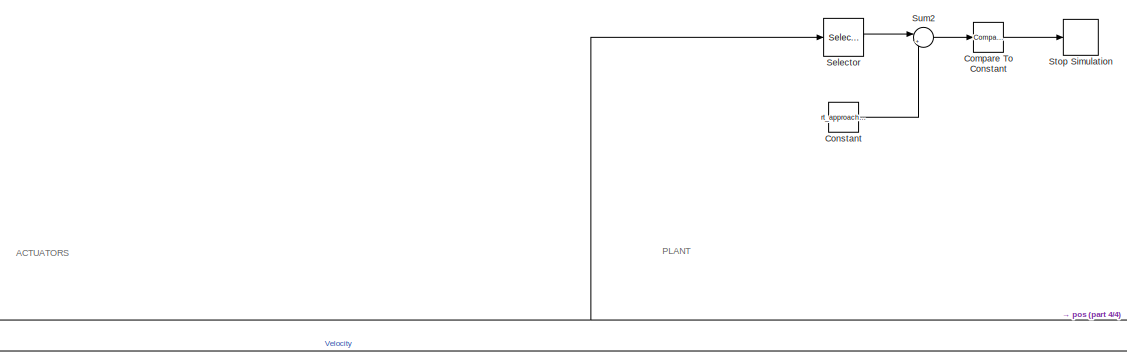
[diagram: root canvas - part 1/4, top center region]
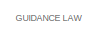
[diagram: root canvas - part 2/4, middle left region]
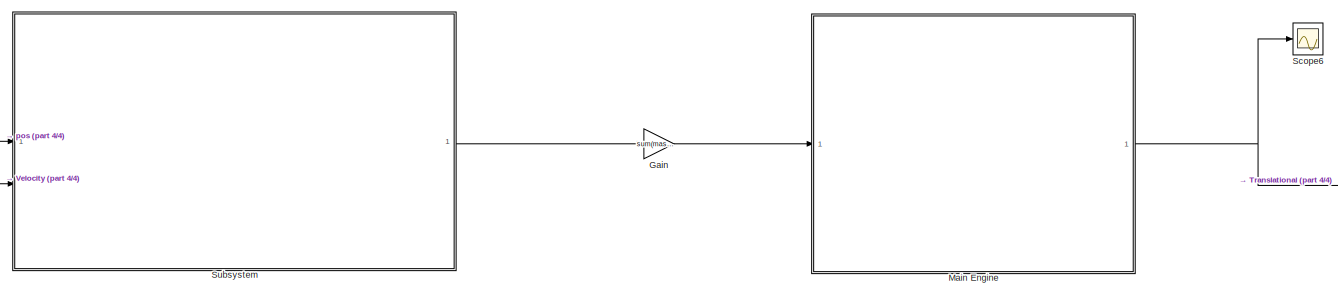
[diagram: root canvas - part 3/4, bottom left region]
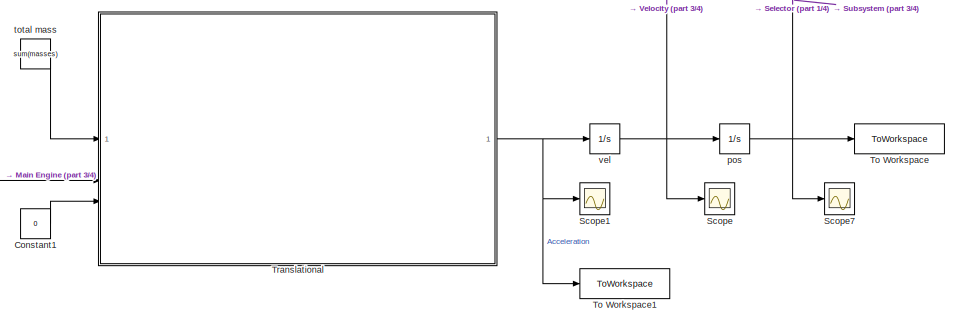
[diagram: root canvas - part 4/4, bottom right region]
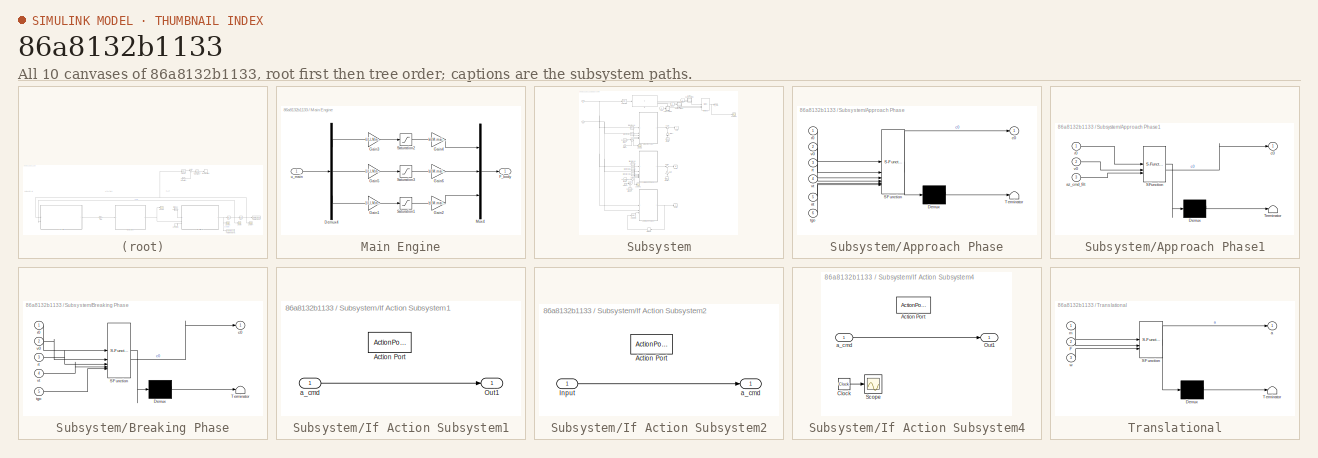
[diagram: thumbnail index - all 10 canvases of the model, root first then tree order]
MODEL slx_86a8132b1133
KIND model
CONFIG AbsTol = auto
CONFIG EnableMultiTasking = off
CONFIG FixedStep = 0.01
CONFIG MaxStep = auto
CONFIG MinStep = auto
CONFIG RelTol = 1e-3
CONFIG SampleTimeConstraint = Unconstrained
CONFIG SolverName = ode4
CONFIG StartTime = 0.0
CONFIG StopTime = 5000
BLOCK [Reference] Compare To Constant  REF=simulink/Logic and Bit
Operations/Compare
To Constant
  SourceBlock = simulink/Logic and Bit\nOperations/Compare\nTo Constant
  SourceType = Compare To Constant
BLOCK [Constant] Constant
  Value = rt_approach(3)
BLOCK [Constant] Constant1
  Value = 0
BLOCK [Gain] Gain
  Gain = sum(masses)
BLOCK [SubSystem] Main Engine
  TreatAsAtomicUnit = on
BLOCK [Demux] Main Engine/Demux4
  Outputs = 3
BLOCK [Outport] Main Engine/F_body
BLOCK [Gain] Main Engine/Gain1
  Gain = 1/LLM.main_engine.Fmax
BLOCK [Gain] Main Engine/Gain2
  Gain = LLM.main_engine.Fmax
BLOCK [Gain] Main Engine/Gain3
  Gain = 1/LLM.main_engine.Fmax
BLOCK [Gain] Main Engine/Gain4
  Gain = LLM.main_engine.Fmax
BLOCK [Gain] Main Engine/Gain5
  Gain = 1/LLM.main_engine.Fmax
BLOCK [Gain] Main Engine/Gain6
  Gain = LLM.main_engine.Fmax
BLOCK [Mux] Main Engine/Mux4
  DisplayOption = bar
  Inputs = 3
BLOCK [Saturate] Main Engine/Saturation1
  LowerLimit = -1
  UpperLimit = 1
BLOCK [Saturate] Main Engine/Saturation2
  LowerLimit = -1
  UpperLimit = 1
BLOCK [Saturate] Main Engine/Saturation3
  LowerLimit = -1
  UpperLimit = 1
BLOCK [Inport] Main Engine/u_main
BLOCK [Scope] Scope
  Floating = off
  NumInputPorts = 1
  ScopeSpecificationString = Simulink.scopes.TimeScopeBlockCfg('CurrentConfiguration', extmgr.ConfigurationSet(extmgr.Configuration('Core','General UI',true),extmgr.Configuration('Core','Source UI',true),extmgr.Configuration('Sources','WiredSimulink',true,'DataLoggingVariableName','ScopeData2'),extmgr.Configuration('Visuals','Time Domain',true,'SerializedDisplays',{struct('MinYLimReal','-239.01619','MaxYLimReal','39.52663','Y...<+1571ch>
BLOCK [Scope] Scope1
  Floating = off
  NumInputPorts = 1
  ScopeSpecificationString = Simulink.scopes.TimeScopeBlockCfg('CurrentConfiguration', extmgr.ConfigurationSet(extmgr.Configuration('Core','General UI',true),extmgr.Configuration('Core','Source UI',true),extmgr.Configuration('Sources','WiredSimulink',true,'DataLoggingVariableName','ScopeData1'),extmgr.Configuration('Visuals','Time Domain',true,'SerializedDisplays',{struct('MinYLimReal','-1.83877','MaxYLimReal','9.70098','YLab...<+1568ch>
BLOCK [Scope] Scope6
  Floating = off
  NumInputPorts = 1
  ScopeSpecificationString = Simulink.scopes.TimeScopeBlockCfg('CurrentConfiguration', extmgr.ConfigurationSet(extmgr.Configuration('Core','General UI',true),extmgr.Configuration('Core','Source UI',true),extmgr.Configuration('Sources','WiredSimulink',true,'DataLoggingVariableName','ScopeData2'),extmgr.Configuration('Visuals','Time Domain',true,'SerializedDisplays',{struct('MinYLimReal','-10872.45811','MaxYLimReal','96195.3189...<+2039ch>
BLOCK [Scope] Scope7
  Floating = off
  NumInputPorts = 1
  ScopeSpecificationString = Simulink.scopes.TimeScopeBlockCfg('CurrentConfiguration', extmgr.ConfigurationSet(extmgr.Configuration('Core','General UI',true),extmgr.Configuration('Core','Source UI',true),extmgr.Configuration('Sources','WiredSimulink',true),extmgr.Configuration('Visuals','Time Domain',true,'SerializedDisplays',{struct('MinYLimReal','-12947.57434','MaxYLimReal','28556.84206','YLabelReal','','MinYLimMag','   0.0...<+1541ch>
BLOCK [Selector] Selector
  IndexOptions = Index vector (dialog)
  Indices = [3]
  InputPortWidth = 3
  OutputSizes = 1
BLOCK [Stop] Stop Simulation
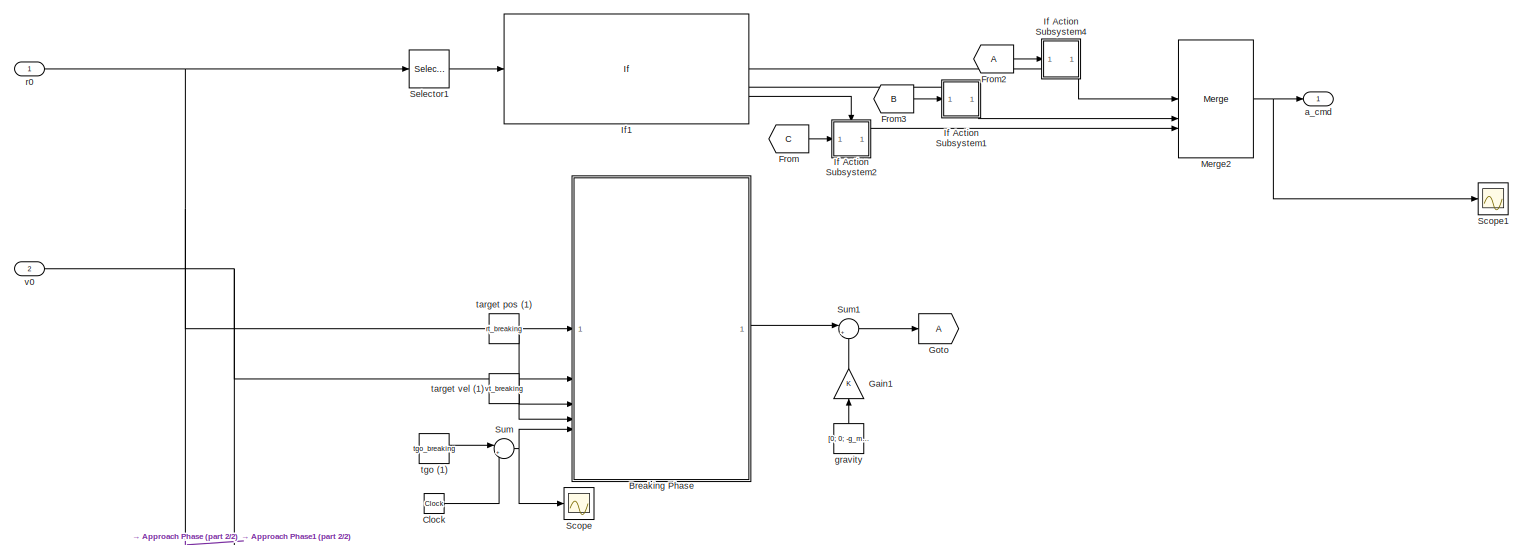
[diagram: Subsystem - part 1/2, full width, top band]
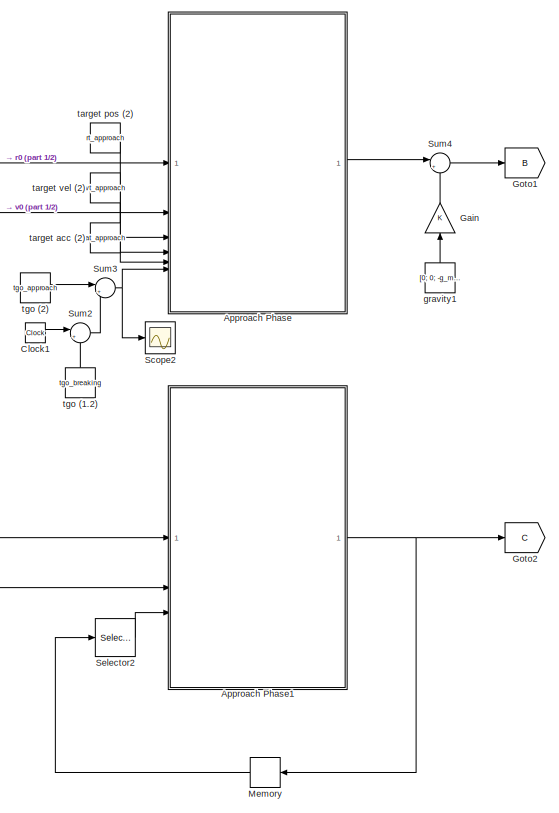
[diagram: Subsystem - part 2/2, bottom center region]
BLOCK [SubSystem] Subsystem
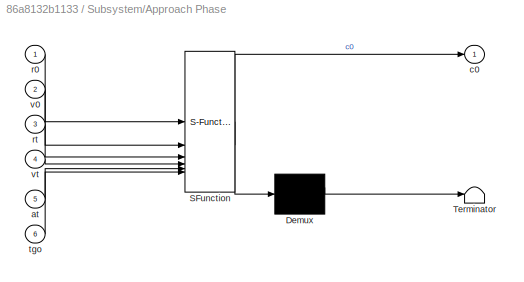
BLOCK [SubSystem] Subsystem/Approach Phase
  ErrorFcn = Stateflow.Translate.translate
  PermitHierarchicalResolution = ExplicitOnly
  SFBlockType = MATLAB Function
  TreatAsAtomicUnit = on
BLOCK [Demux] Subsystem/Approach Phase/ Demux 
  Outputs = 1
BLOCK [S-Function] Subsystem/Approach Phase/ SFunction 
  EnableBusSupport = on
  FunctionName = sf_sfun
  PortCounts = [6 2]
  SFcnIsStateOwnerBlock = off
  SFunctionDeploymentMode = off
  Tag = Stateflow S-Function 1
BLOCK [Terminator] Subsystem/Approach Phase/ Terminator 
BLOCK [Inport] Subsystem/Approach Phase/at
  Port = 5
BLOCK [Outport] Subsystem/Approach Phase/c0
BLOCK [Inport] Subsystem/Approach Phase/r0
BLOCK [Inport] Subsystem/Approach Phase/rt
  Port = 3
BLOCK [Inport] Subsystem/Approach Phase/tgo
  Port = 6
BLOCK [Inport] Subsystem/Approach Phase/v0
  Port = 2
BLOCK [Inport] Subsystem/Approach Phase/vt
  Port = 4
BLOCK [SubSystem] Subsystem/Approach Phase1
  ErrorFcn = Stateflow.Translate.translate
  PermitHierarchicalResolution = ExplicitOnly
  SFBlockType = MATLAB Function
  TreatAsAtomicUnit = on
BLOCK [Demux] Subsystem/Approach Phase1/ Demux 
  Outputs = 1
BLOCK [S-Function] Subsystem/Approach Phase1/ SFunction 
  EnableBusSupport = on
  FunctionName = sf_sfun
  PortCounts = [3 2]
  SFcnIsStateOwnerBlock = off
  SFunctionDeploymentMode = off
  Tag = Stateflow S-Function 3
BLOCK [Terminator] Subsystem/Approach Phase1/ Terminator 
BLOCK [Inport] Subsystem/Approach Phase1/az_cmd_filt
  Port = 3
BLOCK [Outport] Subsystem/Approach Phase1/c0
BLOCK [Inport] Subsystem/Approach Phase1/r0
BLOCK [Inport] Subsystem/Approach Phase1/v0
  Port = 2
BLOCK [SubSystem] Subsystem/Breaking Phase
  ErrorFcn = Stateflow.Translate.translate
  PermitHierarchicalResolution = ExplicitOnly
  SFBlockType = MATLAB Function
  TreatAsAtomicUnit = on
BLOCK [Demux] Subsystem/Breaking Phase/ Demux 
  Outputs = 1
BLOCK [S-Function] Subsystem/Breaking Phase/ SFunction 
  EnableBusSupport = on
  FunctionName = sf_sfun
  PortCounts = [5 2]
  SFcnIsStateOwnerBlock = off
  SFunctionDeploymentMode = off
  Tag = Stateflow S-Function 2
BLOCK [Terminator] Subsystem/Breaking Phase/ Terminator 
BLOCK [Outport] Subsystem/Breaking Phase/c0
BLOCK [Inport] Subsystem/Breaking Phase/r0
BLOCK [Inport] Subsystem/Breaking Phase/rt
  Port = 3
BLOCK [Inport] Subsystem/Breaking Phase/tgo
  Port = 5
BLOCK [Inport] Subsystem/Breaking Phase/v0
  Port = 2
BLOCK [Inport] Subsystem/Breaking Phase/vt
  Port = 4
BLOCK [Clock] Subsystem/Clock
BLOCK [Clock] Subsystem/Clock1
BLOCK [From] Subsystem/From
  GotoTag = C
BLOCK [From] Subsystem/From2
BLOCK [From] Subsystem/From3
  GotoTag = B
BLOCK [Gain] Subsystem/Gain
  NameLocation = right
BLOCK [Gain] Subsystem/Gain1
  NameLocation = right
BLOCK [Goto] Subsystem/Goto
BLOCK [Goto] Subsystem/Goto1
  GotoTag = B
BLOCK [Goto] Subsystem/Goto2
  GotoTag = C
BLOCK [SubSystem] Subsystem/If Action Subsystem1
  TreatAsAtomicUnit = on
BLOCK [ActionPort] Subsystem/If Action Subsystem1/Action Port
  ActionPortLabel = elseif(u1 >= rt_approach(3)  & u1 < rt_breaking(3)  )
BLOCK [Outport] Subsystem/If Action Subsystem1/Out1
BLOCK [Inport] Subsystem/If Action Subsystem1/a_cmd
BLOCK [SubSystem] Subsystem/If Action Subsystem2
  TreatAsAtomicUnit = on
BLOCK [ActionPort] Subsystem/If Action Subsystem2/Action Port
  ActionPortLabel = else
BLOCK [Inport] Subsystem/If Action Subsystem2/Input
BLOCK [Outport] Subsystem/If Action Subsystem2/a_cmd
BLOCK [SubSystem] Subsystem/If Action Subsystem4
  TreatAsAtomicUnit = on
BLOCK [ActionPort] Subsystem/If Action Subsystem4/Action Port
  ActionPortLabel = if(u1 >= rt_breaking(3)  )
BLOCK [Clock] Subsystem/If Action Subsystem4/Clock
BLOCK [Outport] Subsystem/If Action Subsystem4/Out1
BLOCK [Scope] Subsystem/If Action Subsystem4/Scope
  Floating = off
  NumInputPorts = 1
  ScopeSpecificationString = Simulink.scopes.TimeScopeBlockCfg('CurrentConfiguration', extmgr.ConfigurationSet(extmgr.Configuration('Core','General UI',true),extmgr.Configuration('Core','Source UI',true),extmgr.Configuration('Sources','WiredSimulink',true,'DataLoggingVariableName','ScopeData1'),extmgr.Configuration('Visuals','Time Domain',true,'SerializedDisplays',{struct('MinYLimReal','-35.15','MaxYLimReal','316.35','YLabelR...<+1527ch>
BLOCK [Inport] Subsystem/If Action Subsystem4/a_cmd
BLOCK [If] Subsystem/If1
  ElseIfExpressions = u1 >= rt_approach(3)  & u1 < rt_breaking(3)
  IfExpression = u1 >= rt_breaking(3)
BLOCK [Memory] Subsystem/Memory
  NameLocation = top
BLOCK [Merge] Subsystem/Merge2
  Inputs = 3
BLOCK [Scope] Subsystem/Scope
  Floating = off
  NumInputPorts = 1
  ScopeSpecificationString = Simulink.scopes.TimeScopeBlockCfg('CurrentConfiguration', extmgr.ConfigurationSet(extmgr.Configuration('Core','General UI',true),extmgr.Configuration('Core','Source UI',true),extmgr.Configuration('Sources','WiredSimulink',true,'DataLoggingVariableName','ScopeData1'),extmgr.Configuration('Visuals','Time Domain',true,'SerializedDisplays',{struct('MinYLimReal','-0.01364','MaxYLimReal','0.0139','YLabe...<+1518ch>
BLOCK [Scope] Subsystem/Scope1
  Floating = off
  NumInputPorts = 1
  ScopeSpecificationString = Simulink.scopes.TimeScopeBlockCfg('CurrentConfiguration', extmgr.ConfigurationSet(extmgr.Configuration('Core','General UI',true),extmgr.Configuration('Core','Source UI',true),extmgr.Configuration('Sources','WiredSimulink',true,'DataLoggingVariableName','ScopeData3'),extmgr.Configuration('Visuals','Time Domain',true,'SerializedDisplays',{struct('MinYLimReal','-115.5376','MaxYLimReal','1039.83576','...<+1494ch>
BLOCK [Scope] Subsystem/Scope2
  Floating = off
  NumInputPorts = 1
  ScopeSpecificationString = Simulink.scopes.TimeScopeBlockCfg('CurrentConfiguration', extmgr.ConfigurationSet(extmgr.Configuration('Core','General UI',true),extmgr.Configuration('Core','Source UI',true),extmgr.Configuration('Sources','WiredSimulink',true,'DataLoggingVariableName','ScopeData1'),extmgr.Configuration('Visuals','Time Domain',true,'SerializedDisplays',{struct('MinYLimReal','-1219.48851','MaxYLimReal','720.31149',...<+1516ch>
BLOCK [Selector] Subsystem/Selector1
  IndexOptions = Index vector (dialog)
  Indices = [3]
  InputPortWidth = 3
  OutputSizes = 1
BLOCK [Selector] Subsystem/Selector2
  IndexOptions = Index vector (dialog)
  Indices = [3]
  InputPortWidth = 3
  OutputSizes = 1
BLOCK [Sum] Subsystem/Sum
  Inputs = |+-
BLOCK [Sum] Subsystem/Sum1
  Inputs = |+-
BLOCK [Sum] Subsystem/Sum2
  Inputs = |+-
BLOCK [Sum] Subsystem/Sum3
  Inputs = |+-
BLOCK [Sum] Subsystem/Sum4
  Inputs = |+-
BLOCK [Outport] Subsystem/a_cmd
BLOCK [Constant] Subsystem/gravity
  NameLocation = right
  Value = [0; 0; -g_moon]
BLOCK [Constant] Subsystem/gravity1
  NameLocation = right
  Value = [0; 0; -g_moon]
BLOCK [Inport] Subsystem/r0
BLOCK [Constant] Subsystem/target acc (2)
  Value = at_approach
BLOCK [Constant] Subsystem/target pos (1)
  Value = rt_breaking
BLOCK [Constant] Subsystem/target pos (2)
  Value = rt_approach
BLOCK [Constant] Subsystem/target vel (1)
  Value = vt_breaking
BLOCK [Constant] Subsystem/target vel (2)
  Value = vt_approach
BLOCK [Constant] Subsystem/tgo (1)
  Value = tgo_breaking
BLOCK [Constant] Subsystem/tgo (1.2)
  NameLocation = right
  Value = tgo_breaking
BLOCK [Constant] Subsystem/tgo (2)
  Value = tgo_approach
BLOCK [Inport] Subsystem/v0
  Port = 2
BLOCK [Sum] Sum2
  Inputs = |+-
BLOCK [ToWorkspace] To Workspace
  FixptAsFi = on
  MaxDataPoints = inf
  SampleTime = -1
  VariableName = position
BLOCK [ToWorkspace] To Workspace1
  FixptAsFi = on
  MaxDataPoints = inf
  SampleTime = -1
  VariableName = a_cmd
BLOCK [SubSystem] Translational
  ErrorFcn = Stateflow.Translate.translate
  PermitHierarchicalResolution = ExplicitOnly
  SFBlockType = MATLAB Function
  TreatAsAtomicUnit = on
BLOCK [Demux] Translational/ Demux 
  Outputs = 1
BLOCK [S-Function] Translational/ SFunction 
  EnableBusSupport = on
  FunctionName = sf_sfun
  PortCounts = [3 2]
  SFcnIsStateOwnerBlock = off
  SFunctionDeploymentMode = off
  Tag = Stateflow S-Function 7
BLOCK [Terminator] Translational/ Terminator 
BLOCK [Inport] Translational/F
  Port = 2
BLOCK [Outport] Translational/a
BLOCK [Inport] Translational/m
BLOCK [Inport] Translational/w
  Port = 3
BLOCK [Integrator] pos
  InitialCondition = r0
BLOCK [Constant] total mass
  Value = sum(masses)
BLOCK [Integrator] vel
  InitialCondition = v0
ANNOTATION (root): ACTUATORS
ANNOTATION (root): GUIDANCE LAW
ANNOTATION (root): PLANT
LINE Compare To Constant:1 -> Stop Simulation:1
LINE Constant1:1 -> Translational:3
LINE Constant:1 -> Sum2:2
LINE Gain:1 -> Main Engine:1
LINE Main Engine/Demux4:1 -> Main Engine/Gain3:1
LINE Main Engine/Demux4:2 -> Main Engine/Gain5:1
LINE Main Engine/Demux4:3 -> Main Engine/Gain1:1
LINE Main Engine/Gain1:1 -> Main Engine/Saturation1:1
LINE Main Engine/Gain2:1 -> Main Engine/Mux4:3
LINE Main Engine/Gain3:1 -> Main Engine/Saturation2:1
LINE Main Engine/Gain4:1 -> Main Engine/Mux4:1
LINE Main Engine/Gain5:1 -> Main Engine/Saturation3:1
LINE Main Engine/Gain6:1 -> Main Engine/Mux4:2
LINE Main Engine/Mux4:1 -> Main Engine/F_body:1
LINE Main Engine/Saturation1:1 -> Main Engine/Gain2:1
LINE Main Engine/Saturation2:1 -> Main Engine/Gain4:1
LINE Main Engine/Saturation3:1 -> Main Engine/Gain6:1
LINE Main Engine/u_main:1 -> Main Engine/Demux4:1
NET Main Engine:1 -> Scope6:1, Translational:2
LINE Selector:1 -> Sum2:1
NET Subsystem/Approach Phase1:1 -> Subsystem/Goto2:1, Subsystem/Memory:1
LINE Subsystem/Approach Phase:1 -> Subsystem/Sum4:1
LINE Subsystem/Breaking Phase:1 -> Subsystem/Sum1:1
LINE Subsystem/Clock1:1 -> Subsystem/Sum2:1
LINE Subsystem/Clock:1 -> Subsystem/Sum:2
LINE Subsystem/From2:1 -> Subsystem/If Action Subsystem4:1
LINE Subsystem/From3:1 -> Subsystem/If Action Subsystem1:1
LINE Subsystem/From:1 -> Subsystem/If Action Subsystem2:1
LINE Subsystem/Gain1:1 -> Subsystem/Sum1:2
LINE Subsystem/Gain:1 -> Subsystem/Sum4:2
LINE Subsystem/If Action Subsystem1/a_cmd:1 -> Subsystem/If Action Subsystem1/Out1:1
LINE Subsystem/If Action Subsystem1:1 -> Subsystem/Merge2:2
LINE Subsystem/If Action Subsystem2/Input:1 -> Subsystem/If Action Subsystem2/a_cmd:1
LINE Subsystem/If Action Subsystem2:1 -> Subsystem/Merge2:3
LINE Subsystem/If Action Subsystem4/Clock:1 -> Subsystem/If Action Subsystem4/Scope:1
LINE Subsystem/If Action Subsystem4/a_cmd:1 -> Subsystem/If Action Subsystem4/Out1:1
LINE Subsystem/If Action Subsystem4:1 -> Subsystem/Merge2:1
LINE Subsystem/If1:1 -> Subsystem/If Action Subsystem4:ifaction
LINE Subsystem/If1:2 -> Subsystem/If Action Subsystem1:ifaction
LINE Subsystem/If1:3 -> Subsystem/If Action Subsystem2:ifaction
LINE Subsystem/Memory:1 -> Subsystem/Selector2:1
NET Subsystem/Merge2:1 -> Subsystem/Scope1:1, Subsystem/a_cmd:1
LINE Subsystem/Selector1:1 -> Subsystem/If1:1
LINE Subsystem/Selector2:1 -> Subsystem/Approach Phase1:3
LINE Subsystem/Sum1:1 -> Subsystem/Goto:1
LINE Subsystem/Sum2:1 -> Subsystem/Sum3:2
NET Subsystem/Sum3:1 -> Subsystem/Approach Phase:6, Subsystem/Scope2:1
LINE Subsystem/Sum4:1 -> Subsystem/Goto1:1
NET Subsystem/Sum:1 -> Subsystem/Breaking Phase:5, Subsystem/Scope:1
LINE Subsystem/gravity1:1 -> Subsystem/Gain:1
LINE Subsystem/gravity:1 -> Subsystem/Gain1:1
NET Subsystem/r0:1 -> Subsystem/Approach Phase1:1, Subsystem/Approach Phase:1, Subsystem/Breaking Phase:1, Subsystem/Selector1:1
LINE Subsystem/target acc (2):1 -> Subsystem/Approach Phase:5
LINE Subsystem/target pos (1):1 -> Subsystem/Breaking Phase:3
LINE Subsystem/target pos (2):1 -> Subsystem/Approach Phase:3
LINE Subsystem/target vel (1):1 -> Subsystem/Breaking Phase:4
LINE Subsystem/target vel (2):1 -> Subsystem/Approach Phase:4
LINE Subsystem/tgo (1):1 -> Subsystem/Sum:1
LINE Subsystem/tgo (1.2):1 -> Subsystem/Sum2:2
LINE Subsystem/tgo (2):1 -> Subsystem/Sum3:1
NET Subsystem/v0:1 -> Subsystem/Approach Phase1:2, Subsystem/Approach Phase:2, Subsystem/Breaking Phase:2
LINE Subsystem:1 -> Gain:1
LINE Sum2:1 -> Compare To Constant:1
NET Translational:1 -> Scope1:1, To Workspace1:1, vel:1
NET pos:1 -> Scope7:1, Selector:1, Subsystem:1, To Workspace:1
LINE total mass:1 -> Translational:1
NET vel:1 -> Scope:1, Subsystem:2, pos:1
note: NET lines group one-source signal fan-out (src -> all destinations, sorted); 1:1 wires keep LINE
CHART Subsystem/Approach Phase states=1 transitions=1
  STATE_LABEL 'eML_blk_kernel()'
  STATE_LABEL 'SCRIPT:\nfunction c0 = approach_coeffs(r0,v0,rt,vt,at,tgo)\n\n    c0 = at - 6*(vt+v0)/tgo + 12*(rt - r0)/(tgo^2);\n    if tgo<1\n        tgo = 1;\n        c0 = [0; 0; -1.63];\n    end\n\nend'
CHART Subsystem/Breaking Phase states=1 transitions=1
  STATE_LABEL 'eML_blk_kernel()'
  STATE_LABEL 'SCRIPT:\nfunction c0 = braking_coeffs(r0, v0, rt, vt, tgo)\n    \n    c0 = (-2*(vt+2*v0))/tgo + 6*(rt - r0)/(tgo^2);\n    if tgo<0.5\n        c0 = [0; 0; -1.63];\n    end\n\nend'
CHART Subsystem/Approach Phase1 states=1 transitions=1
  STATE_LABEL 'eML_blk_kernel()'
  STATE_LABEL "SCRIPT:\nfunction c0 = approach_coeffs(r0,v0,az_cmd_filt)\n    \n    g_moon  = 1.62;\n    az3_cmd = 1.2*g_moon;\n\n    clip = @(u,umin,umax) max(min(u,umax),umin);\n\n    if ~exist('Kxy','var'),      Kxy = 0.8; end\n    if ~exist('ax_max','var'),   ax_max = 2.0; end\n    if ~exist('ay_max','var'),   ay_max = 2.0; end\n    if ~exist('daz_max','var'),  daz_max = 0.6*g_moon; end\n    if ~exist('az_cmd_filt','var...<+3217ch>"
CHART Translational states=1 transitions=1
  STATE_LABEL 'eML_blk_kernel()'
  STATE_LABEL 'SCRIPT:\nfunction a = translation(m, F, w)\n\n% lunar gravity in inertial frame (verso -Z)\ngL = 1.622;\ng = [0; 0; -gL];\n\na = F./m + g;\n\nend'
CHART  states=0 transitions=0
CHART  states=0 transitions=0
CHART  states=0 transitions=0
CHART  states=0 transitions=0
